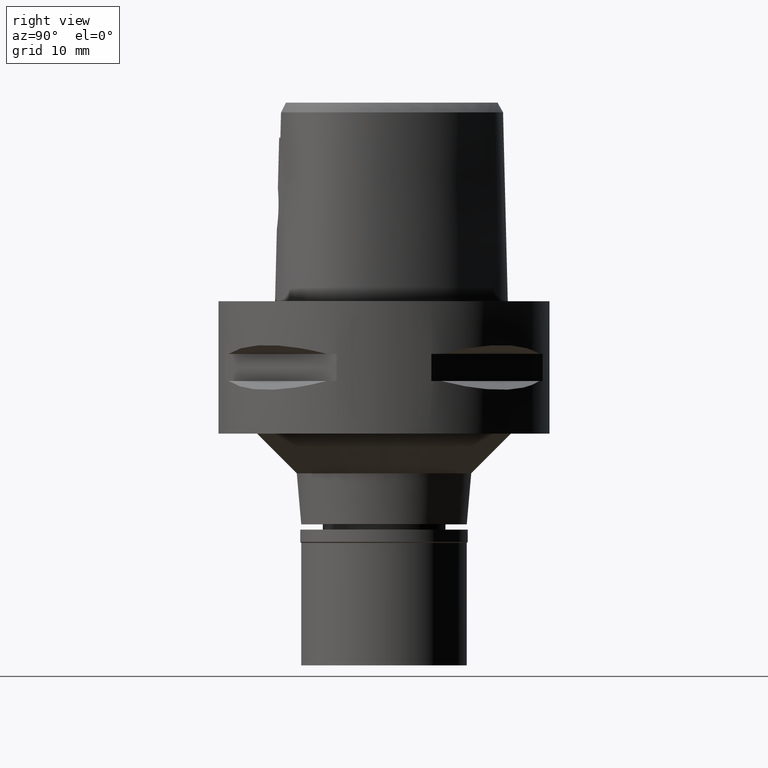
[diagram: clean part render]
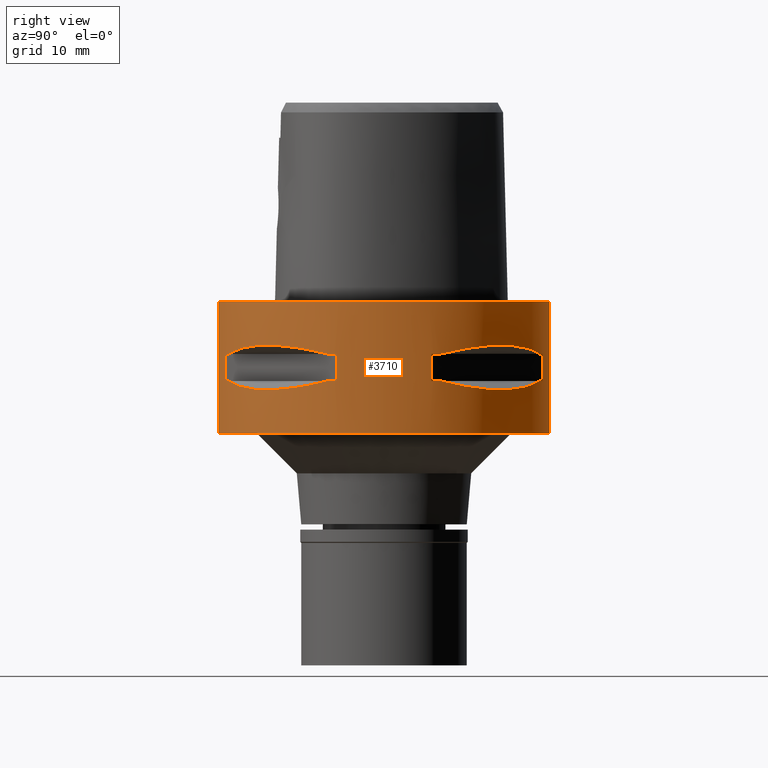
[diagram: same view with one face highlighted and labeled with its STEP entity id]
A machine part, right view. The second image highlights one B-rep face of the part: STEP entity #3710.
In plain terms, the highlighted cylindrical surface (partial cylindrical patch) has radius 25 mm, axis along (0, 0, -1).
Its self-contained STEP definition (entity closure, byte-faithful):
#62 = CARTESIAN_POINT ( 'NONE',  ( 13.48572973711064193, -21.05082155772163688, -13.04323036965292637 ) ) ;
#78 = DIRECTION ( 'NONE',  ( 0.0000000000000000000, 0.0000000000000000000, -1.000000000000000000 ) ) ;
#94 = EDGE_CURVE ( 'NONE', #1290, #2641, #3507, .T. ) ;
#109 = EDGE_CURVE ( 'NONE', #660, #3847, #1120, .T. ) ;
#126 = VERTEX_POINT ( 'NONE', #1897 ) ;
#191 = CARTESIAN_POINT ( 'NONE',  ( 23.95277699797999915, 7.159921374230999724, -12.05000000000000071 ) ) ;
#197 = DIRECTION ( 'NONE',  ( 0.0000000000000000000, 1.000000000000000000, 0.0000000000000000000 ) ) ;
#208 = ORIENTED_EDGE ( 'NONE', *, *, #4265, .T. ) ;
#219 = CARTESIAN_POINT ( 'NONE',  ( 0.0000000000000000000, 1.254528181046999847E-14, -7.950000000000000178 ) ) ;
#223 = EDGE_CURVE ( 'NONE', #3818, #265, #864, .T. ) ;
#265 = VERTEX_POINT ( 'NONE', #1680 ) ;
#285 = EDGE_CURVE ( 'NONE', #3784, #2383, #2960, .T. ) ;
#301 = EDGE_CURVE ( 'NONE', #1958, #1375, #4165, .T. ) ;
#331 = CARTESIAN_POINT ( 'NONE',  ( 13.67544437571146609, 20.92801700160250533, -13.07054629644086674 ) ) ;
#338 = VECTOR ( 'NONE', #2575, 1000.000000000000000 ) ;
#339 = CARTESIAN_POINT ( 'NONE',  ( 0.0000000000000000000, 1.254528181046999847E-14, -12.05000000000000071 ) ) ;
#342 = CARTESIAN_POINT ( 'NONE',  ( 0.0000000000000000000, 1.254528181046999847E-14, -7.950000000000000178 ) ) ;
#358 = CARTESIAN_POINT ( 'NONE',  ( 11.99636231264435615, 22.00752022556853404, -7.175618606703330293 ) ) ;
#366 = ORIENTED_EDGE ( 'NONE', *, *, #1565, .F. ) ;
#385 = VERTEX_POINT ( 'NONE', #2074 ) ;
#406 = FACE_BOUND ( 'NONE', #2130, .T. ) ;
#417 = CARTESIAN_POINT ( 'NONE',  ( 23.45715880140000209, -8.646484890751999330, -12.05000000000000071 ) ) ;
#435 = CARTESIAN_POINT ( 'NONE',  ( 20.97251445226583755, -13.60713573003076071, -13.06082541678112641 ) ) ;
#457 = AXIS2_PLACEMENT_3D ( 'NONE', #3037, #2334, #4582 ) ;
#497 = EDGE_CURVE ( 'NONE', #660, #126, #2338, .T. ) ;
#558 = B_SPLINE_CURVE_WITH_KNOTS ( 'NONE', 3,
 ( #1473, #3308, #3969, #3260, #1043, #2915, #4363, #358, #2894, #1447 ),
 .UNSPECIFIED., .F., .F.,
 ( 4, 2, 2, 2, 4 ),
 ( 0.0000000000000000000, 0.2500000000000000000, 0.5000000000000000000, 0.7500000000000000000, 1.000000000000000000 ),
 .UNSPECIFIED. ) ;
#565 = CARTESIAN_POINT ( 'NONE',  ( 22.82437128822188654, -10.36318218122986856, -7.507495686399608736 ) ) ;
#606 = EDGE_CURVE ( 'NONE', #1290, #3847, #4548, .T. ) ;
#619 = VECTOR ( 'NONE', #4507, 1000.000000000000000 ) ;
#660 = VERTEX_POINT ( 'NONE', #2504 ) ;
#684 = DIRECTION ( 'NONE',  ( 0.3458593956303108730, -0.9382863520558295534, 0.0000000000000000000 ) ) ;
#690 = CARTESIAN_POINT ( 'NONE',  ( 12.03062603423778754, 21.99328990739221013, -12.83394786307672675 ) ) ;
#726 = DIRECTION ( 'NONE',  ( 0.0000000000000000000, 0.0000000000000000000, 1.000000000000000000 ) ) ;
#746 = DIRECTION ( 'NONE',  ( 0.0000000000000000000, 0.0000000000000000000, -1.000000000000000000 ) ) ;
#761 = ORIENTED_EDGE ( 'NONE', *, *, #1432, .F. ) ;
#769 = CARTESIAN_POINT ( 'NONE',  ( 19.18226349639588690, -16.07509500018327131, -13.33749867752016449 ) ) ;
#770 = ORIENTED_EDGE ( 'NONE', *, *, #1659, .T. ) ;
#797 = CARTESIAN_POINT ( 'NONE',  ( 20.11654071402723432, -14.85488513038430192, -13.22076716108491290 ) ) ;
#817 = ORIENTED_EDGE ( 'NONE', *, *, #1093, .F. ) ;
#864 = CIRCLE ( 'NONE', #3709, 25.00000000000001066 ) ;
#872 = AXIS2_PLACEMENT_3D ( 'NONE', #1768, #3655, #684 ) ;
#932 = CARTESIAN_POINT ( 'NONE',  ( 11.99631184311069099, -22.00754773658079344, -7.175632472892013780 ) ) ;
#933 = CARTESIAN_POINT ( 'NONE',  ( 22.58788056560981516, 10.78455809748034788, -12.56798337783676267 ) ) ;
#947 = CARTESIAN_POINT ( 'NONE',  ( 0.0000000000000000000, 25.00000000000000000, -20.00000000000000000 ) ) ;
#948 = DIRECTION ( 'NONE',  ( 0.9581110799190402094, 0.2863968549694120291, 0.0000000000000000000 ) ) ;
#1043 = CARTESIAN_POINT ( 'NONE',  ( 18.93096040781554024, 16.42437865151185505, -6.622505547253058289 ) ) ;
#1062 = CARTESIAN_POINT ( 'NONE',  ( 21.01958685664017068, 13.53433973752500918, -13.05032380590188446 ) ) ;
#1067 = CARTESIAN_POINT ( 'NONE',  ( 23.95277699797999915, -7.159921374230999724, -7.950000000000000178 ) ) ;
#1083 = CARTESIAN_POINT ( 'NONE',  ( 8.646484890751999330, 23.45715880140000209, -12.05000000000000071 ) ) ;
#1093 = EDGE_CURVE ( 'NONE', #3788, #385, #1488, .T. ) ;
#1120 = LINE ( 'NONE', #1485, #1707 ) ;
#1134 = CARTESIAN_POINT ( 'NONE',  ( 23.45715880140000209, 8.646484890751999330, -7.949999999998999201 ) ) ;
#1152 = FACE_BOUND ( 'NONE', #3625, .T. ) ;
#1189 = CARTESIAN_POINT ( 'NONE',  ( 0.0000000000000000000, -25.00000000000000000, 0.0000000000000000000 ) ) ;
#1204 = CARTESIAN_POINT ( 'NONE',  ( 10.78455809745186755, -22.58788056562029922, -12.56798337782941566 ) ) ;
#1229 = DIRECTION ( 'NONE',  ( 0.0000000000000000000, 0.0000000000000000000, -1.000000000000000000 ) ) ;
#1247 = AXIS2_PLACEMENT_3D ( 'NONE', #4232, #4259, #948 ) ;
#1259 = DIRECTION ( 'NONE',  ( 0.3458593956303108730, 0.9382863520558295534, 0.0000000000000000000 ) ) ;
#1270 = VERTEX_POINT ( 'NONE', #2331 ) ;
#1284 = CARTESIAN_POINT ( 'NONE',  ( 23.45715880140000209, 8.646484890756999775, -12.05000000000000071 ) ) ;
#1290 = VERTEX_POINT ( 'NONE', #3842 ) ;
#1305 = CARTESIAN_POINT ( 'NONE',  ( 23.13678124604550845, 9.515641234313701347, -12.27403800213050111 ) ) ;
#1335 = AXIS2_PLACEMENT_3D ( 'NONE', #339, #4305, #1849 ) ;
#1336 = CARTESIAN_POINT ( 'NONE',  ( 21.41803043591995959, 12.89853354823032738, -12.95342092614324869 ) ) ;
#1375 = VERTEX_POINT ( 'NONE', #947 ) ;
#1404 = AXIS2_PLACEMENT_3D ( 'NONE', #342, #726, #4739 ) ;
#1432 = EDGE_CURVE ( 'NONE', #1270, #265, #4257, .T. ) ;
#1447 = CARTESIAN_POINT ( 'NONE',  ( 8.646484890751999330, 23.45715880140000209, -7.949999999998999201 ) ) ;
#1463 = CARTESIAN_POINT ( 'NONE',  ( 20.56020460723486565, -14.22535762328174691, -13.14488865845287080 ) ) ;
#1473 = CARTESIAN_POINT ( 'NONE',  ( 23.45715880140000209, 8.646484890751999330, -7.949999999998999201 ) ) ;
#1478 = DIRECTION ( 'NONE',  ( 0.0000000000000000000, -1.000000000000000000, 0.0000000000000000000 ) ) ;
#1485 = CARTESIAN_POINT ( 'NONE',  ( 7.159921374230999724, -23.95277699797999915, -7.950000000000000178 ) ) ;
#1488 = B_SPLINE_CURVE_WITH_KNOTS ( 'NONE', 3,
 ( #1284, #1305, #933, #3180, #1336, #1727, #3219, #1799, #1062, #4664, #2552, #2204, #4364, #2871, #2582, #3599, #3951, #2115, #331, #3289, #3638, #690, #4707, #1083 ),
 .UNSPECIFIED., .F., .F.,
 ( 4, 1, 1, 1, 1, 1, 2, 2, 2, 1, 1, 1, 1, 1, 2, 2, 4 ),
 ( 0.0000000000000000000, 0.1249999999999982236, 0.1874999999999974465, 0.2187499999999970302, 0.2343749999999969469, 0.2421874999999968081, 0.2460937499999968359, 0.2499999999999968914, 0.4999999999999973355, 0.6249999999999973355, 0.6874999999999976685, 0.7187499999999978906, 0.7343749999999980016, 0.7421874999999980016, 0.7460937499999978906, 0.7499999999999978906, 1.000000000000000000 ),
 .UNSPECIFIED. ) ;
#1505 = CARTESIAN_POINT ( 'NONE',  ( 20.95817024473895174, -13.62920640916654591, -13.06397973560678061 ) ) ;
#1526 = CARTESIAN_POINT ( 'NONE',  ( 20.77616787493668937, -13.90573822667970916, -13.10257122103325145 ) ) ;
#1527 = EDGE_CURVE ( 'NONE', #4287, #4580, #3112, .T. ) ;
#1561 = DIRECTION ( 'NONE',  ( 0.9581110799190402094, -0.2863968549694120291, 0.0000000000000000000 ) ) ;
#1565 = EDGE_CURVE ( 'NONE', #3784, #1375, #2773, .T. ) ;
#1609 = CARTESIAN_POINT ( 'NONE',  ( 23.45715880140000209, -8.646484890751999330, -7.949999999998999201 ) ) ;
#1617 = EDGE_LOOP ( 'NONE', ( #3607, #4006, #1723, #366 ) ) ;
#1654 = CARTESIAN_POINT ( 'NONE',  ( 0.0000000000000000000, 1.254528181046999847E-14, -20.00000000000000000 ) ) ;
#1659 = EDGE_CURVE ( 'NONE', #3908, #3818, #558, .T. ) ;
#1660 = CARTESIAN_POINT ( 'NONE',  ( 18.93096040781557221, -16.42437865151179466, -6.622496303226939496 ) ) ;
#1680 = CARTESIAN_POINT ( 'NONE',  ( 7.159921374230999724, 23.95277699797999915, -7.950000000000000178 ) ) ;
#1707 = VECTOR ( 'NONE', #746, 1000.000000000000000 ) ;
#1723 = ORIENTED_EDGE ( 'NONE', *, *, #301, .T. ) ;
#1727 = CARTESIAN_POINT ( 'NONE',  ( 21.20561591939435786, 13.24197703503935486, -13.00691327926270446 ) ) ;
#1768 = CARTESIAN_POINT ( 'NONE',  ( 0.0000000000000000000, 1.254528181046999847E-14, -12.05000000000000071 ) ) ;
#1799 = CARTESIAN_POINT ( 'NONE',  ( 21.05082155772089436, 13.48572973711263323, -13.04323036965343618 ) ) ;
#1802 = CARTESIAN_POINT ( 'NONE',  ( 0.0000000000000000000, 25.00000000000000000, 0.0000000000000000000 ) ) ;
#1816 = ORIENTED_EDGE ( 'NONE', *, *, #1896, .T. ) ;
#1822 = B_SPLINE_CURVE_WITH_KNOTS ( 'NONE', 3,
 ( #3515, #3126, #932, #3101, #2032, #1660, #4573, #2762, #565, #1609 ),
 .UNSPECIFIED., .F., .F.,
 ( 4, 2, 2, 2, 4 ),
 ( 0.0000000000000000000, 0.2500000000000000000, 0.5000000000000000000, 0.7500000000000000000, 1.000000000000000000 ),
 .UNSPECIFIED. ) ;
#1831 = CARTESIAN_POINT ( 'NONE',  ( 13.53433973752400554, -21.01958685664054372, -13.05032380590162333 ) ) ;
#1834 = LINE ( 'NONE', #2934, #338 ) ;
#1849 = DIRECTION ( 'NONE',  ( 0.9382863520558295534, 0.3458593956303108730, 0.0000000000000000000 ) ) ;
#1876 = CARTESIAN_POINT ( 'NONE',  ( 12.20403021317722292, -21.82791133048418786, -12.83722430138600323 ) ) ;
#1896 = EDGE_CURVE ( 'NONE', #3135, #2641, #4095, .T. ) ;
#1897 = CARTESIAN_POINT ( 'NONE',  ( 8.646484890751999330, -23.45715880140000209, -7.949999999998999201 ) ) ;
#1958 = VERTEX_POINT ( 'NONE', #4102 ) ;
#1982 = CARTESIAN_POINT ( 'NONE',  ( 0.0000000000000000000, 1.254528181046999847E-14, -7.950000000000000178 ) ) ;
#1985 = EDGE_CURVE ( 'NONE', #126, #4019, #1822, .T. ) ;
#2026 = DIRECTION ( 'NONE',  ( 0.0000000000000000000, -1.000000000000000000, 0.0000000000000000000 ) ) ;
#2031 = VECTOR ( 'NONE', #4560, 1000.000000000000000 ) ;
#2032 = CARTESIAN_POINT ( 'NONE',  ( 16.42437865151175558, -18.93096040781560774, -6.622505547253058289 ) ) ;
#2074 = CARTESIAN_POINT ( 'NONE',  ( 8.646484890751999330, 23.45715880140000209, -12.05000000000000071 ) ) ;
#2115 = CARTESIAN_POINT ( 'NONE',  ( 13.74471461761685198, 20.88268233906084248, -13.08031795579737455 ) ) ;
#2130 = EDGE_LOOP ( 'NONE', ( #2165, #761, #208, #817, #3576, #4370, #3763, #770 ) ) ;
#2165 = ORIENTED_EDGE ( 'NONE', *, *, #223, .T. ) ;
#2194 = CARTESIAN_POINT ( 'NONE',  ( 13.24197703503267931, -21.20561591939681634, -13.00691327926098495 ) ) ;
#2197 = EDGE_CURVE ( 'NONE', #2383, #1958, #1834, .T. ) ;
#2204 = CARTESIAN_POINT ( 'NONE',  ( 18.92421359264142211, 16.43106916203626611, -13.37747608848383329 ) ) ;
#2266 = CARTESIAN_POINT ( 'NONE',  ( 15.06560254765663132, -20.02826730455345583, -13.27075471794622885 ) ) ;
#2280 = FACE_OUTER_BOUND ( 'NONE', #1617, .T. ) ;
#2331 = CARTESIAN_POINT ( 'NONE',  ( 7.159921374235000080, 23.95277699797999915, -12.05000000000000071 ) ) ;
#2334 = DIRECTION ( 'NONE',  ( 0.0000000000000000000, 0.0000000000000000000, -1.000000000000000000 ) ) ;
#2335 = CIRCLE ( 'NONE', #1247, 24.99999999999999645 ) ;
#2338 = CIRCLE ( 'NONE', #1404, 24.99999999999999645 ) ;
#2348 = DIRECTION ( 'NONE',  ( 0.0000000000000000000, 0.0000000000000000000, 1.000000000000000000 ) ) ;
#2382 = CARTESIAN_POINT ( 'NONE',  ( 23.95277699797999915, 7.159921374235000080, -7.950000000000000178 ) ) ;
#2383 = VERTEX_POINT ( 'NONE', #1189 ) ;
#2393 = CARTESIAN_POINT ( 'NONE',  ( 23.95277699797999915, -7.159921374230999724, -12.05000000000000071 ) ) ;
#2394 = AXIS2_PLACEMENT_3D ( 'NONE', #2604, #78, #1478 ) ;
#2411 = DIRECTION ( 'NONE',  ( 0.9382863520558295534, -0.3458593956303108730, 0.0000000000000000000 ) ) ;
#2417 = CARTESIAN_POINT ( 'NONE',  ( 23.95277699797999915, -7.159921374235000080, -12.05000000000000071 ) ) ;
#2463 = ORIENTED_EDGE ( 'NONE', *, *, #4510, .F. ) ;
#2504 = CARTESIAN_POINT ( 'NONE',  ( 7.159921374235000080, -23.95277699797999915, -7.950000000000000178 ) ) ;
#2518 = VERTEX_POINT ( 'NONE', #1067 ) ;
#2552 = CARTESIAN_POINT ( 'NONE',  ( 20.02826730452214932, 15.06560254769159712, -13.27075471794772277 ) ) ;
#2565 = EDGE_CURVE ( 'NONE', #3788, #4580, #3348, .T. ) ;
#2575 = DIRECTION ( 'NONE',  ( 0.0000000000000000000, 0.0000000000000000000, -1.000000000000000000 ) ) ;
#2582 = CARTESIAN_POINT ( 'NONE',  ( 14.85488513038957592, 20.11654071401955335, -13.22076716108393413 ) ) ;
#2604 = CARTESIAN_POINT ( 'NONE',  ( 0.0000000000000000000, 1.254528181046999847E-14, 2.439999999999999947 ) ) ;
#2641 = VERTEX_POINT ( 'NONE', #3957 ) ;
#2676 = CARTESIAN_POINT ( 'NONE',  ( 12.89853354821786624, -21.41803043592453548, -12.95342092614003349 ) ) ;
#2714 = DIRECTION ( 'NONE',  ( 0.0000000000000000000, 0.0000000000000000000, -1.000000000000000000 ) ) ;
#2751 = DIRECTION ( 'NONE',  ( 0.0000000000000000000, 0.0000000000000000000, 1.000000000000000000 ) ) ;
#2762 = CARTESIAN_POINT ( 'NONE',  ( 22.00752022556849496, -11.99636231264437214, -7.175618606703330293 ) ) ;
#2773 = LINE ( 'NONE', #3350, #4559 ) ;
#2804 = LINE ( 'NONE', #2393, #619 ) ;
#2829 = CARTESIAN_POINT ( 'NONE',  ( 8.646484890751999330, 23.45715880140000209, -7.949999999998999201 ) ) ;
#2871 = CARTESIAN_POINT ( 'NONE',  ( 16.07509500019029502, 19.18226349638565509, -13.33749867751885532 ) ) ;
#2894 = CARTESIAN_POINT ( 'NONE',  ( 10.36318218122983481, 22.82437128822192207, -7.507495686399608736 ) ) ;
#2915 = CARTESIAN_POINT ( 'NONE',  ( 16.42437865151178045, 18.93096040781560063, -6.622496303226939496 ) ) ;
#2934 = CARTESIAN_POINT ( 'NONE',  ( 0.0000000000000000000, -25.00000000000000000, 0.0000000000000000000 ) ) ;
#2956 = CARTESIAN_POINT ( 'NONE',  ( 21.99328990740119139, -12.03062603421341770, -12.83394786307044022 ) ) ;
#2960 = CIRCLE ( 'NONE', #3791, 25.00000000000000000 ) ;
#2973 = CARTESIAN_POINT ( 'NONE',  ( 23.45715880140000209, -8.646484890751999330, -7.949999999998999201 ) ) ;
#2978 = CARTESIAN_POINT ( 'NONE',  ( 16.43106916202457057, -18.92421359264944769, -13.37747608848233760 ) ) ;
#3018 = CARTESIAN_POINT ( 'NONE',  ( 18.30096971348435630, -17.05439749817190176, -13.37751056790094850 ) ) ;
#3037 = CARTESIAN_POINT ( 'NONE',  ( 0.0000000000000000000, 1.254528181046999847E-14, -12.05000000000000071 ) ) ;
#3082 = CARTESIAN_POINT ( 'NONE',  ( 23.95277699797999915, 7.159921374230999724, -7.950000000000000178 ) ) ;
#3101 = CARTESIAN_POINT ( 'NONE',  ( 15.02693924547570070, -20.06077645874711379, -6.733132781305676495 ) ) ;
#3112 = LINE ( 'NONE', #3082, #2031 ) ;
#3120 = EDGE_CURVE ( 'NONE', #4287, #3908, #2335, .T. ) ;
#3126 = CARTESIAN_POINT ( 'NONE',  ( 10.36314631860608593, -22.82438450745432945, -7.507504930525397135 ) ) ;
#3132 = ORIENTED_EDGE ( 'NONE', *, *, #1985, .T. ) ;
#3135 = VERTEX_POINT ( 'NONE', #2417 ) ;
#3180 = CARTESIAN_POINT ( 'NONE',  ( 21.82791133047632215, 12.20403021319857828, -12.83722430139150994 ) ) ;
#3219 = CARTESIAN_POINT ( 'NONE',  ( 21.09754014381971388, 13.41274673326716282, -13.03250796600833716 ) ) ;
#3234 = ORIENTED_EDGE ( 'NONE', *, *, #109, .F. ) ;
#3245 = CIRCLE ( 'NONE', #3551, 25.00000000000001066 ) ;
#3260 = CARTESIAN_POINT ( 'NONE',  ( 20.06077645874710313, 15.02693924547574866, -6.733132781305676495 ) ) ;
#3264 = CARTESIAN_POINT ( 'NONE',  ( 23.45715880140000209, 8.646484890756999775, -12.05000000000000071 ) ) ;
#3271 = AXIS2_PLACEMENT_3D ( 'NONE', #4126, #2714, #1561 ) ;
#3281 = ORIENTED_EDGE ( 'NONE', *, *, #4196, .T. ) ;
#3289 = CARTESIAN_POINT ( 'NONE',  ( 13.62920640916679993, 20.95817024473859291, -13.06397973560673265 ) ) ;
#3308 = CARTESIAN_POINT ( 'NONE',  ( 22.82438450745431524, 10.36314631860615876, -7.507504930525397135 ) ) ;
#3316 = CARTESIAN_POINT ( 'NONE',  ( 13.55971422200820520, -21.00321793043535479, -13.05400030967370206 ) ) ;
#3329 = CYLINDRICAL_SURFACE ( 'NONE', #2394, 25.00000000000000000 ) ;
#3339 = CARTESIAN_POINT ( 'NONE',  ( 8.646484890756999775, -23.45715880140000209, -12.05000000000000071 ) ) ;
#3348 = CIRCLE ( 'NONE', #1335, 25.00000000000001066 ) ;
#3350 = CARTESIAN_POINT ( 'NONE',  ( 0.0000000000000000000, 25.00000000000000000, 0.0000000000000000000 ) ) ;
#3420 = DIRECTION ( 'NONE',  ( 0.0000000000000000000, 0.0000000000000000000, 1.000000000000000000 ) ) ;
#3455 = DIRECTION ( 'NONE',  ( 0.0000000000000000000, 0.0000000000000000000, 1.000000000000000000 ) ) ;
#3484 = CARTESIAN_POINT ( 'NONE',  ( 0.0000000000000000000, 1.254528181046999847E-14, 0.0000000000000000000 ) ) ;
#3507 = B_SPLINE_CURVE_WITH_KNOTS ( 'NONE', 3,
 ( #3339, #4090, #1204, #1876, #2676, #2194, #3668, #62, #1831, #3316, #2266, #2978, #3018, #769, #797, #1463, #1526, #4114, #3708, #1505, #435, #2956, #4405, #417 ),
 .UNSPECIFIED., .F., .F.,
 ( 4, 1, 1, 1, 1, 1, 2, 2, 2, 1, 1, 1, 1, 1, 2, 2, 4 ),
 ( 0.0000000000000000000, 0.1250000000000068834, 0.1875000000000101308, 0.2187500000000117406, 0.2343750000000125733, 0.2421875000000129341, 0.2460937500000130174, 0.2500000000000131006, 0.5000000000000111022, 0.6250000000000101030, 0.6875000000000099920, 0.7187500000000099920, 0.7343750000000099920, 0.7421875000000098810, 0.7460937500000098810, 0.7500000000000098810, 1.000000000000000000 ),
 .UNSPECIFIED. ) ;
#3515 = CARTESIAN_POINT ( 'NONE',  ( 8.646484890751999330, -23.45715880140000209, -7.949999999998999201 ) ) ;
#3551 = AXIS2_PLACEMENT_3D ( 'NONE', #1982, #3420, #2411 ) ;
#3576 = ORIENTED_EDGE ( 'NONE', *, *, #2565, .T. ) ;
#3595 = ORIENTED_EDGE ( 'NONE', *, *, #497, .T. ) ;
#3599 = CARTESIAN_POINT ( 'NONE',  ( 14.22535762328483067, 20.56020460723039278, -13.14488865845230592 ) ) ;
#3607 = ORIENTED_EDGE ( 'NONE', *, *, #285, .T. ) ;
#3625 = EDGE_LOOP ( 'NONE', ( #3281, #2463, #1816, #4003, #4057, #3234, #3595, #3132 ) ) ;
#3638 = CARTESIAN_POINT ( 'NONE',  ( 13.60713573003037880, 20.97251445226597966, -13.06082541678103404 ) ) ;
#3655 = DIRECTION ( 'NONE',  ( 0.0000000000000000000, 0.0000000000000000000, -1.000000000000000000 ) ) ;
#3668 = CARTESIAN_POINT ( 'NONE',  ( 13.41274673326371314, -21.09754014382099285, -13.03250796600744721 ) ) ;
#3708 = CARTESIAN_POINT ( 'NONE',  ( 20.92801700160322298, -13.67544437571097404, -13.07054629644096444 ) ) ;
#3709 = AXIS2_PLACEMENT_3D ( 'NONE', #219, #3455, #1259 ) ;
#3710 = ADVANCED_FACE ( 'NONE', ( #2280, #1152, #406 ), #3329, .T. ) ;
#3744 = CARTESIAN_POINT ( 'NONE',  ( 7.159921374230999724, -23.95277699797999915, -12.05000000000000071 ) ) ;
#3763 = ORIENTED_EDGE ( 'NONE', *, *, #3120, .T. ) ;
#3784 = VERTEX_POINT ( 'NONE', #1802 ) ;
#3788 = VERTEX_POINT ( 'NONE', #3264 ) ;
#3791 = AXIS2_PLACEMENT_3D ( 'NONE', #3484, #1229, #197 ) ;
#3818 = VERTEX_POINT ( 'NONE', #2829 ) ;
#3825 = CARTESIAN_POINT ( 'NONE',  ( 7.159921374230999724, 23.95277699797999915, -12.05000000000000071 ) ) ;
#3842 = CARTESIAN_POINT ( 'NONE',  ( 8.646484890756999775, -23.45715880140000209, -12.05000000000000071 ) ) ;
#3847 = VERTEX_POINT ( 'NONE', #3744 ) ;
#3908 = VERTEX_POINT ( 'NONE', #1134 ) ;
#3928 = CIRCLE ( 'NONE', #457, 24.99999999999999645 ) ;
#3951 = CARTESIAN_POINT ( 'NONE',  ( 13.90573822668135406, 20.77616787493428774, -13.10257122103294058 ) ) ;
#3957 = CARTESIAN_POINT ( 'NONE',  ( 23.45715880140000209, -8.646484890751999330, -12.05000000000000071 ) ) ;
#3969 = CARTESIAN_POINT ( 'NONE',  ( 22.00754773658079344, 11.99631184311074428, -7.175632472892013780 ) ) ;
#4003 = ORIENTED_EDGE ( 'NONE', *, *, #94, .F. ) ;
#4006 = ORIENTED_EDGE ( 'NONE', *, *, #2197, .T. ) ;
#4019 = VERTEX_POINT ( 'NONE', #2973 ) ;
#4057 = ORIENTED_EDGE ( 'NONE', *, *, #606, .T. ) ;
#4090 = CARTESIAN_POINT ( 'NONE',  ( 9.515641234297431694, -23.13678124605150188, -12.27403800212630536 ) ) ;
#4095 = CIRCLE ( 'NONE', #3271, 24.99999999999999645 ) ;
#4102 = CARTESIAN_POINT ( 'NONE',  ( 0.0000000000000000000, -25.00000000000000000, -20.00000000000000000 ) ) ;
#4114 = CARTESIAN_POINT ( 'NONE',  ( 20.88268233906207172, -13.74471461761599400, -13.08031795579753087 ) ) ;
#4126 = CARTESIAN_POINT ( 'NONE',  ( 0.0000000000000000000, 1.254528181046999847E-14, -12.05000000000000071 ) ) ;
#4165 = CIRCLE ( 'NONE', #4469, 25.00000000000000000 ) ;
#4183 = VECTOR ( 'NONE', #2751, 1000.000000000000000 ) ;
#4196 = EDGE_CURVE ( 'NONE', #4019, #2518, #3245, .T. ) ;
#4232 = CARTESIAN_POINT ( 'NONE',  ( 0.0000000000000000000, 1.254528181046999847E-14, -7.950000000000000178 ) ) ;
#4257 = LINE ( 'NONE', #3825, #4183 ) ;
#4259 = DIRECTION ( 'NONE',  ( 0.0000000000000000000, 0.0000000000000000000, 1.000000000000000000 ) ) ;
#4265 = EDGE_CURVE ( 'NONE', #1270, #385, #3928, .T. ) ;
#4287 = VERTEX_POINT ( 'NONE', #2382 ) ;
#4305 = DIRECTION ( 'NONE',  ( 0.0000000000000000000, 0.0000000000000000000, -1.000000000000000000 ) ) ;
#4363 = CARTESIAN_POINT ( 'NONE',  ( 15.02698525050126044, 20.06074199764951871, -6.733118915116994785 ) ) ;
#4364 = CARTESIAN_POINT ( 'NONE',  ( 17.05439749817592343, 18.30096971347850499, -13.37751056790020598 ) ) ;
#4370 = ORIENTED_EDGE ( 'NONE', *, *, #1527, .F. ) ;
#4405 = CARTESIAN_POINT ( 'NONE',  ( 22.81626994452193458, -10.38516041956038727, -12.49816953211166037 ) ) ;
#4414 = DIRECTION ( 'NONE',  ( 0.0000000000000000000, 0.0000000000000000000, -1.000000000000000000 ) ) ;
#4469 = AXIS2_PLACEMENT_3D ( 'NONE', #1654, #2348, #2026 ) ;
#4507 = DIRECTION ( 'NONE',  ( 0.0000000000000000000, 0.0000000000000000000, 1.000000000000000000 ) ) ;
#4510 = EDGE_CURVE ( 'NONE', #3135, #2518, #2804, .T. ) ;
#4548 = CIRCLE ( 'NONE', #872, 25.00000000000001066 ) ;
#4559 = VECTOR ( 'NONE', #4414, 1000.000000000000000 ) ;
#4560 = DIRECTION ( 'NONE',  ( 0.0000000000000000000, 0.0000000000000000000, -1.000000000000000000 ) ) ;
#4573 = CARTESIAN_POINT ( 'NONE',  ( 20.06074199764950095, -15.02698525050125156, -6.733118915116994785 ) ) ;
#4580 = VERTEX_POINT ( 'NONE', #191 ) ;
#4582 = DIRECTION ( 'NONE',  ( 0.2863968549694120291, 0.9581110799190402094, 0.0000000000000000000 ) ) ;
#4664 = CARTESIAN_POINT ( 'NONE',  ( 21.00321793043583796, 13.55971422200765630, -13.05400030967367897 ) ) ;
#4707 = CARTESIAN_POINT ( 'NONE',  ( 10.38516041958474645, 22.81626994451295332, -12.49816953211793802 ) ) ;
#4739 = DIRECTION ( 'NONE',  ( 0.2863968549694120291, -0.9581110799190402094, 0.0000000000000000000 ) ) ;